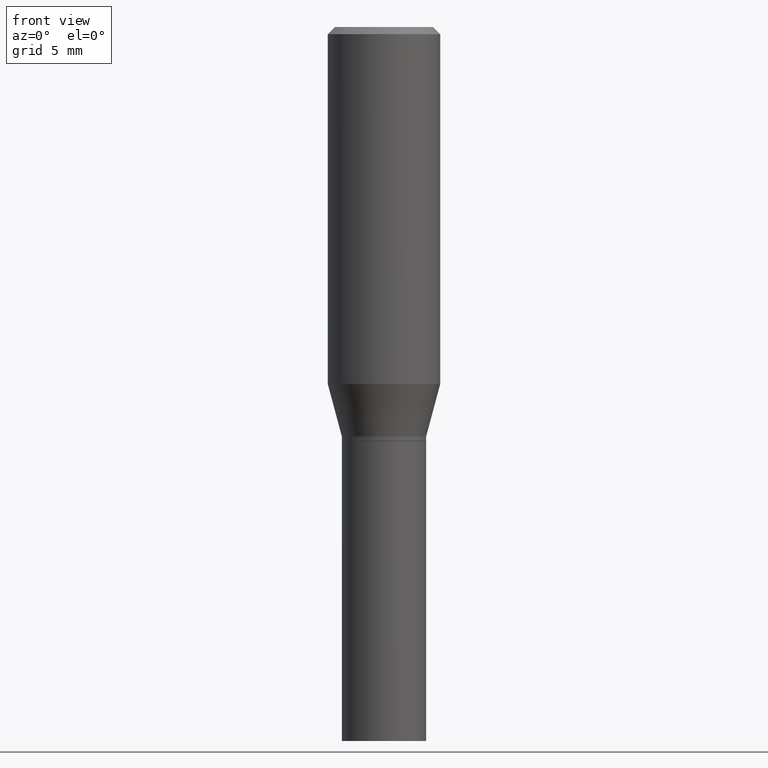
[diagram: clean part render]
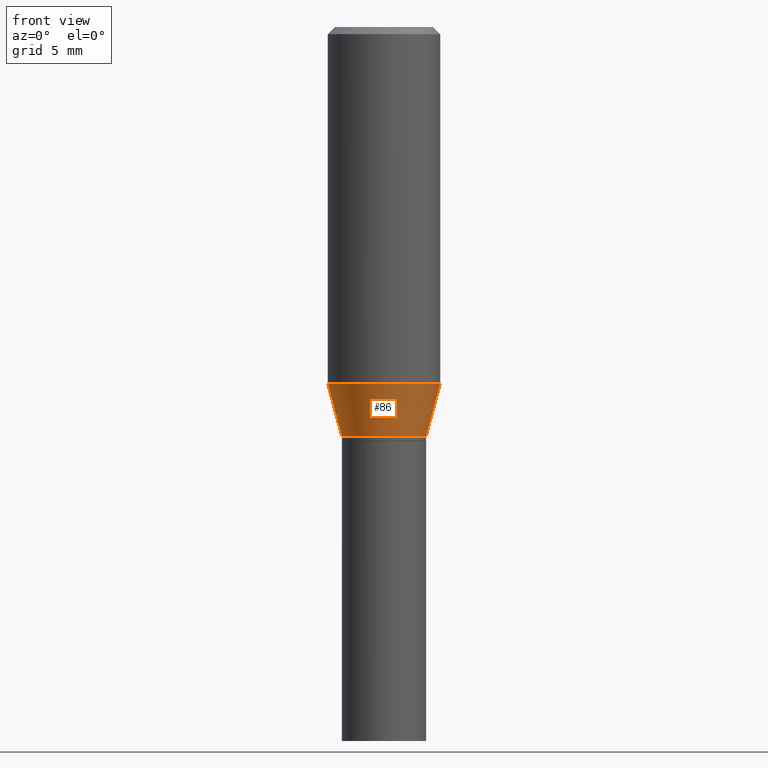
[diagram: same view with one face highlighted and labeled with its STEP entity id]
A machine part, front view. The second image highlights one B-rep face of the part: STEP entity #86.
In plain terms, the highlighted conical surface has half-angle 15 deg.
Its self-contained STEP definition (entity closure, byte-faithful):
#12 = EDGE_CURVE ( 'NONE', #95, #55, #344, .T. ) ;
#27 = CARTESIAN_POINT ( 'NONE',  ( -0.08859999999999995657, -2.373482235655541495E-15, -0.8601000000000001977 ) ) ;
#55 = VERTEX_POINT ( 'NONE', #314 ) ;
#72 = DIRECTION ( 'NONE',  ( 1.000000000000000000, -6.982962677686266711E-15, 0.000000000000000000 ) ) ;
#86 = ADVANCED_FACE ( 'NONE', ( #454 ), #115, .T. ) ;
#92 = AXIS2_PLACEMENT_3D ( 'NONE', #405, #232, #228 ) ;
#95 = VERTEX_POINT ( 'NONE', #447 ) ;
#111 = DIRECTION ( 'NONE',  ( -0.2588190451025210170, 5.211531920934547886E-15, 0.9659258262890682012 ) ) ;
#115 = CONICAL_SURFACE ( 'NONE', #338, 0.08859999999999995657, 0.2617993877991496854 ) ;
#142 = CARTESIAN_POINT ( 'NONE',  ( 2.103347720199836549E-29, -3.003023099538990346E-15, -0.8601000000000001977 ) ) ;
#147 = ORIENTED_EDGE ( 'NONE', *, *, #316, .F. ) ;
#174 = VECTOR ( 'NONE', #296, 39.37007874015748143 ) ;
#190 = AXIS2_PLACEMENT_3D ( 'NONE', #319, #221, #257 ) ;
#192 = VERTEX_POINT ( 'NONE', #350 ) ;
#198 = CIRCLE ( 'NONE', #92, 0.08859999999999995657 ) ;
#221 = DIRECTION ( 'NONE',  ( -2.445468806185136597E-29, 3.491481338843145583E-15, 1.000000000000000000 ) ) ;
#222 = CARTESIAN_POINT ( 'NONE',  ( 0.08859999999999995657, -3.621713592781993299E-15, -0.8601000000000001977 ) ) ;
#228 = DIRECTION ( 'NONE',  ( 1.000000000000000000, -6.982962677686266711E-15, 0.000000000000000000 ) ) ;
#232 = DIRECTION ( 'NONE',  ( -2.445468806185136597E-29, 3.491481338843145583E-15, 1.000000000000000000 ) ) ;
#257 = DIRECTION ( 'NONE',  ( 1.000000000000000000, -6.982962677686265133E-15, 0.000000000000000000 ) ) ;
#263 = CARTESIAN_POINT ( 'NONE',  ( 0.08859999999999995657, -3.621713592781993299E-15, -0.8601000000000001977 ) ) ;
#264 = ORIENTED_EDGE ( 'NONE', *, *, #456, .T. ) ;
#268 = EDGE_LOOP ( 'NONE', ( #297, #410, #264, #147 ) ) ;
#293 = LINE ( 'NONE', #263, #174 ) ;
#296 = DIRECTION ( 'NONE',  ( 0.2588190451025210170, 1.565188264969624531E-15, 0.9659258262890682012 ) ) ;
#297 = ORIENTED_EDGE ( 'NONE', *, *, #12, .F. ) ;
#314 = CARTESIAN_POINT ( 'NONE',  ( -0.1180999999999999966, -1.779475748974195504E-15, -0.7500045011767182412 ) ) ;
#316 = EDGE_CURVE ( 'NONE', #55, #192, #321, .T. ) ;
#319 = CARTESIAN_POINT ( 'NONE',  ( 1.834112612126108016E-29, -2.618626719906874095E-15, -0.7500045011767182412 ) ) ;
#321 = CIRCLE ( 'NONE', #190, 0.1180999999999999966 ) ;
#331 = VERTEX_POINT ( 'NONE', #222 ) ;
#338 = AXIS2_PLACEMENT_3D ( 'NONE', #142, #418, #72 ) ;
#344 = LINE ( 'NONE', #27, #442 ) ;
#350 = CARTESIAN_POINT ( 'NONE',  ( 0.1180999999999999966, -3.443314612141622358E-15, -0.7500045011767182412 ) ) ;
#401 = EDGE_CURVE ( 'NONE', #95, #331, #198, .T. ) ;
#405 = CARTESIAN_POINT ( 'NONE',  ( 2.103347720199836549E-29, -3.003023099538990346E-15, -0.8601000000000001977 ) ) ;
#410 = ORIENTED_EDGE ( 'NONE', *, *, #401, .T. ) ;
#418 = DIRECTION ( 'NONE',  ( -2.445468806185136597E-29, 3.491481338843145583E-15, 1.000000000000000000 ) ) ;
#442 = VECTOR ( 'NONE', #111, 39.37007874015748143 ) ;
#447 = CARTESIAN_POINT ( 'NONE',  ( -0.08859999999999995657, -2.076478992314868500E-15, -0.8601000000000001977 ) ) ;
#454 = FACE_OUTER_BOUND ( 'NONE', #268, .T. ) ;
#456 = EDGE_CURVE ( 'NONE', #331, #192, #293, .T. ) ;